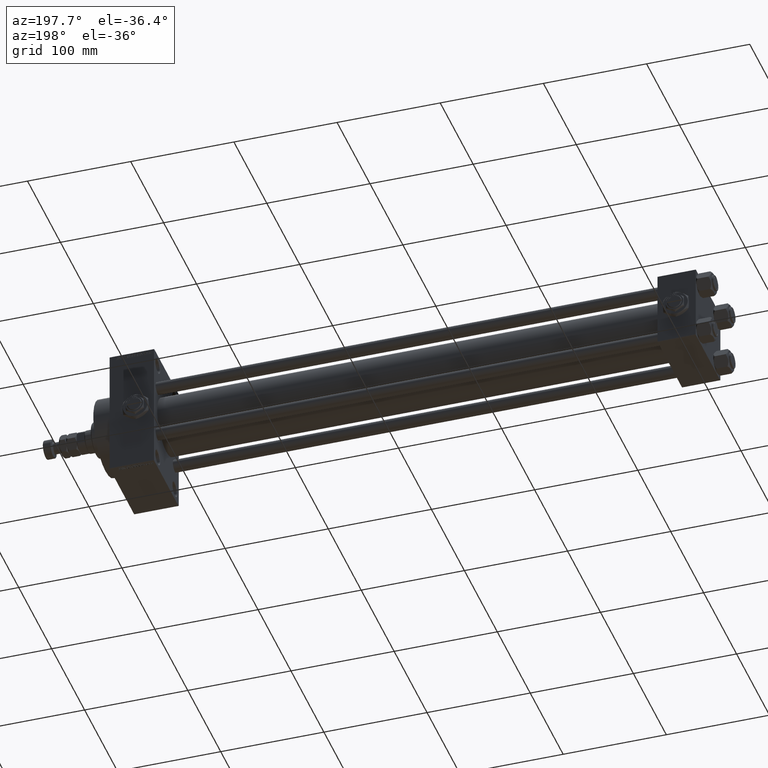
[diagram: clean part render]
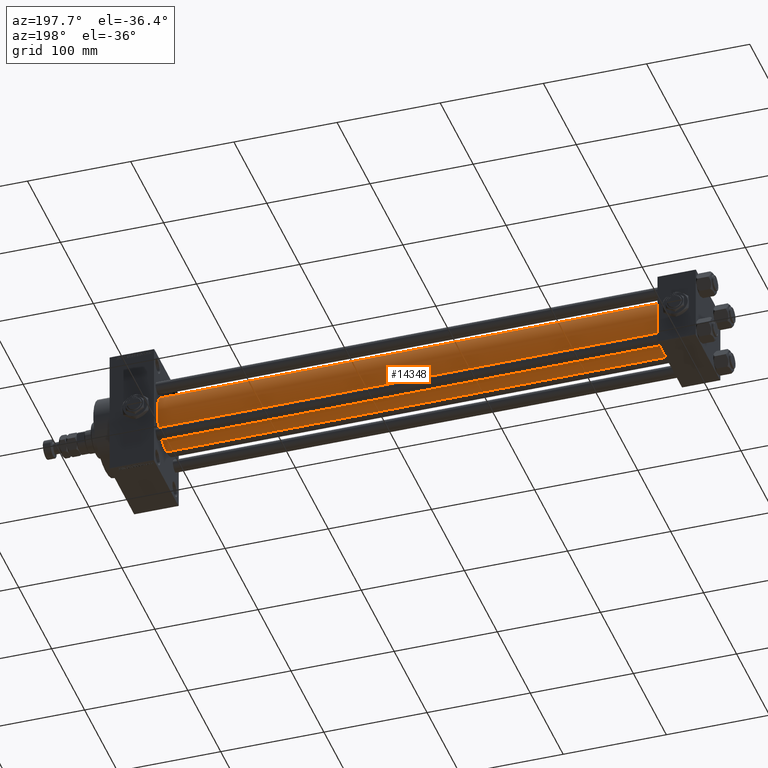
[diagram: same view with one face highlighted and labeled with its STEP entity id]
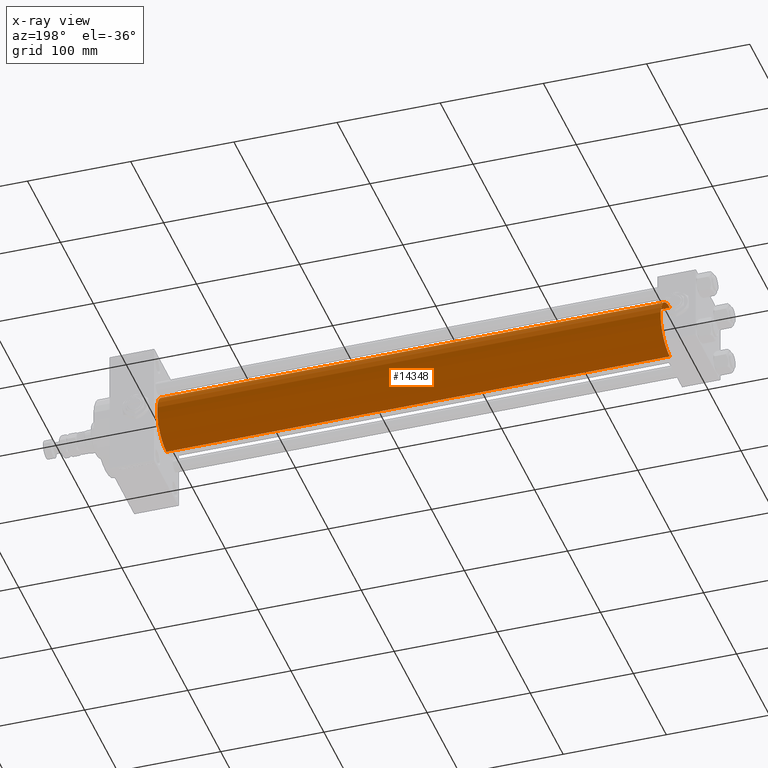
[diagram: x-ray of the same camera — body ghosted, the highlighted face saturated]
A machine part, auxiliary view. The second image highlights one B-rep face of the part: STEP entity #14348.
The next image is the same camera in x-ray: the body ghosted, the highlighted face saturated — about 0% of this face is hidden behind the body in this view.
In plain terms, the highlighted cylindrical surface (edge-blend (fillet) strip) has radius 28 mm, axis along (-1, -0, -0).
Its self-contained STEP definition (entity closure, byte-faithful):
#1115 = CARTESIAN_POINT ( 'NONE',  ( 525.0000000000000000, -2.602085213965210642E-15, 0.000000000000000000 ) ) ;
#1409 = LINE ( 'NONE', #45188, #2797 ) ;
#2409 = DIRECTION ( 'NONE',  ( 0.000000000000000000, 0.000000000000000000, 1.000000000000000000 ) ) ;
#2797 = VECTOR ( 'NONE', #48542, 1000.000000000000000 ) ;
#2936 = ORIENTED_EDGE ( 'NONE', *, *, #46331, .T. ) ;
#6007 = CARTESIAN_POINT ( 'NONE',  ( 36.99999999999997868, -2.602085213965210642E-15, 0.000000000000000000 ) ) ;
#10660 = VERTEX_POINT ( 'NONE', #28803 ) ;
#12726 = CYLINDRICAL_SURFACE ( 'NONE', #22065, 28.00000000000000000 ) ;
#13926 = DIRECTION ( 'NONE',  ( 0.000000000000000000, 0.000000000000000000, -1.000000000000000000 ) ) ;
#14348 = ADVANCED_FACE ( 'NONE', ( #36146 ), #12726, .T. ) ;
#16828 = DIRECTION ( 'NONE',  ( 0.000000000000000000, 0.000000000000000000, 1.000000000000000000 ) ) ;
#18980 = EDGE_CURVE ( 'NONE', #10660, #46813, #48760, .T. ) ;
#20628 = VERTEX_POINT ( 'NONE', #44857 ) ;
#21630 = AXIS2_PLACEMENT_3D ( 'NONE', #29835, #49197, #13926 ) ;
#22065 = AXIS2_PLACEMENT_3D ( 'NONE', #1115, #24574, #16828 ) ;
#22988 = LINE ( 'NONE', #50537, #38168 ) ;
#23038 = CARTESIAN_POINT ( 'NONE',  ( 36.99999999999997868, -2.602085213965210642E-15, 28.00000000000000000 ) ) ;
#23881 = CARTESIAN_POINT ( 'NONE',  ( 525.0000000000000000, -2.602085213965210642E-15, 28.00000000000000000 ) ) ;
#24574 = DIRECTION ( 'NONE',  ( -1.000000000000000000, -0.000000000000000000, -0.000000000000000000 ) ) ;
#24889 = EDGE_CURVE ( 'NONE', #46813, #37057, #1409, .T. ) ;
#26296 = ORIENTED_EDGE ( 'NONE', *, *, #24889, .F. ) ;
#28803 = CARTESIAN_POINT ( 'NONE',  ( 525.0000000000000000, 8.269258236473776482E-16, -28.00000000000000000 ) ) ;
#29670 = DIRECTION ( 'NONE',  ( 1.000000000000000000, -0.000000000000000000, 0.000000000000000000 ) ) ;
#29835 = CARTESIAN_POINT ( 'NONE',  ( 525.0000000000000000, -2.602085213965210642E-15, 0.000000000000000000 ) ) ;
#34798 = DIRECTION ( 'NONE',  ( -1.000000000000000000, -0.000000000000000000, -0.000000000000000000 ) ) ;
#36146 = FACE_OUTER_BOUND ( 'NONE', #48747, .T. ) ;
#36532 = ORIENTED_EDGE ( 'NONE', *, *, #46515, .T. ) ;
#37057 = VERTEX_POINT ( 'NONE', #23038 ) ;
#38168 = VECTOR ( 'NONE', #34798, 1000.000000000000000 ) ;
#43024 = ORIENTED_EDGE ( 'NONE', *, *, #18980, .F. ) ;
#44779 = CIRCLE ( 'NONE', #48042, 28.00000000000000000 ) ;
#44857 = CARTESIAN_POINT ( 'NONE',  ( 36.99999999999997868, 8.269258236473776482E-16, -28.00000000000000000 ) ) ;
#45188 = CARTESIAN_POINT ( 'NONE',  ( 525.0000000000000000, -2.602085213965210642E-15, 28.00000000000000000 ) ) ;
#46331 = EDGE_CURVE ( 'NONE', #20628, #37057, #44779, .T. ) ;
#46515 = EDGE_CURVE ( 'NONE', #10660, #20628, #22988, .T. ) ;
#46813 = VERTEX_POINT ( 'NONE', #23881 ) ;
#48042 = AXIS2_PLACEMENT_3D ( 'NONE', #6007, #29670, #2409 ) ;
#48542 = DIRECTION ( 'NONE',  ( -1.000000000000000000, -0.000000000000000000, -0.000000000000000000 ) ) ;
#48747 = EDGE_LOOP ( 'NONE', ( #43024, #36532, #2936, #26296 ) ) ;
#48760 = CIRCLE ( 'NONE', #21630, 28.00000000000000000 ) ;
#49197 = DIRECTION ( 'NONE',  ( 1.000000000000000000, 0.000000000000000000, 0.000000000000000000 ) ) ;
#50537 = CARTESIAN_POINT ( 'NONE',  ( 525.0000000000000000, 8.269258236473776482E-16, -28.00000000000000000 ) ) ;